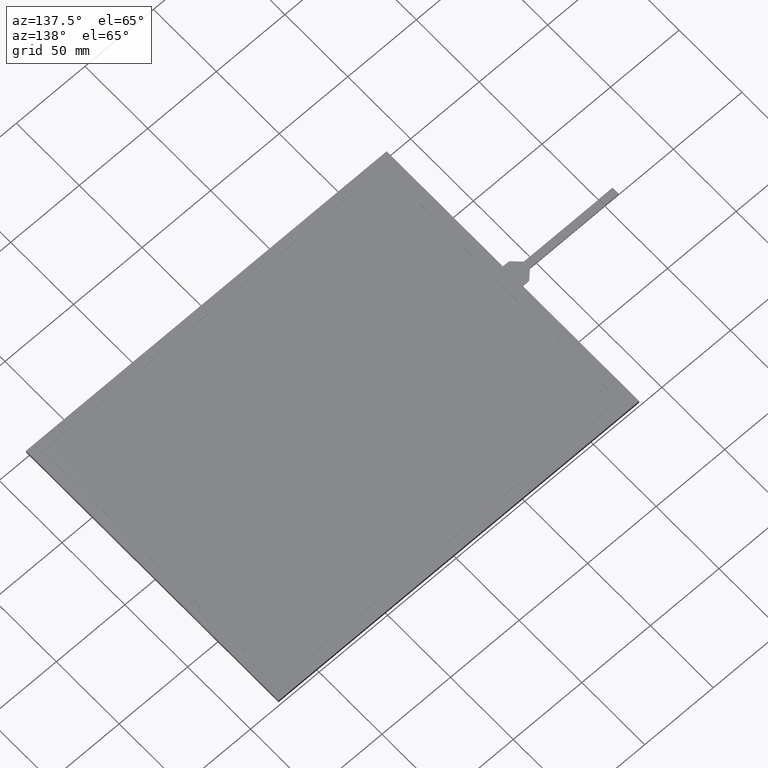
[diagram: clean part render]
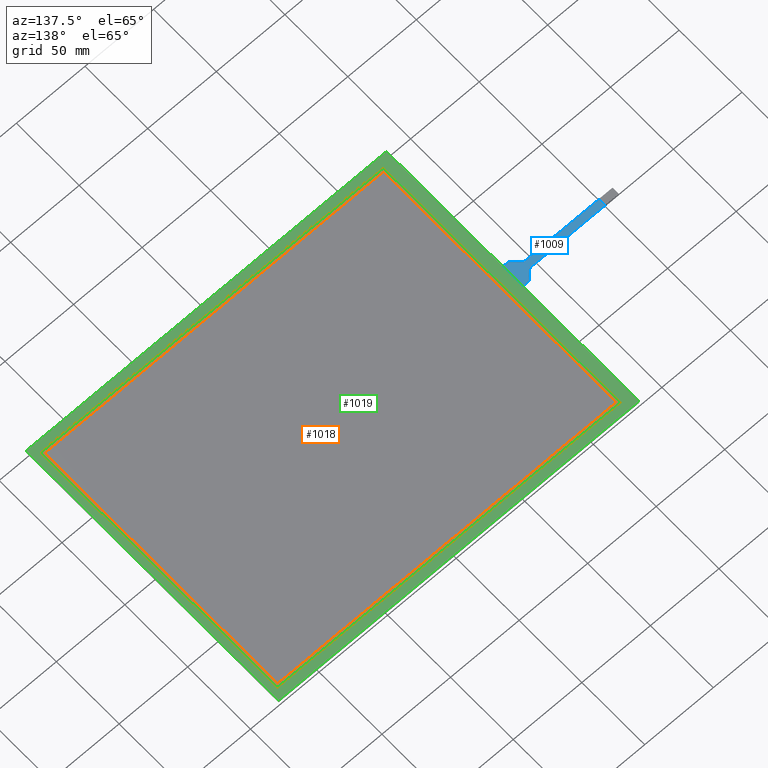
[diagram: same view with three faces highlighted in distinct colors, each labeled with its STEP entity id]
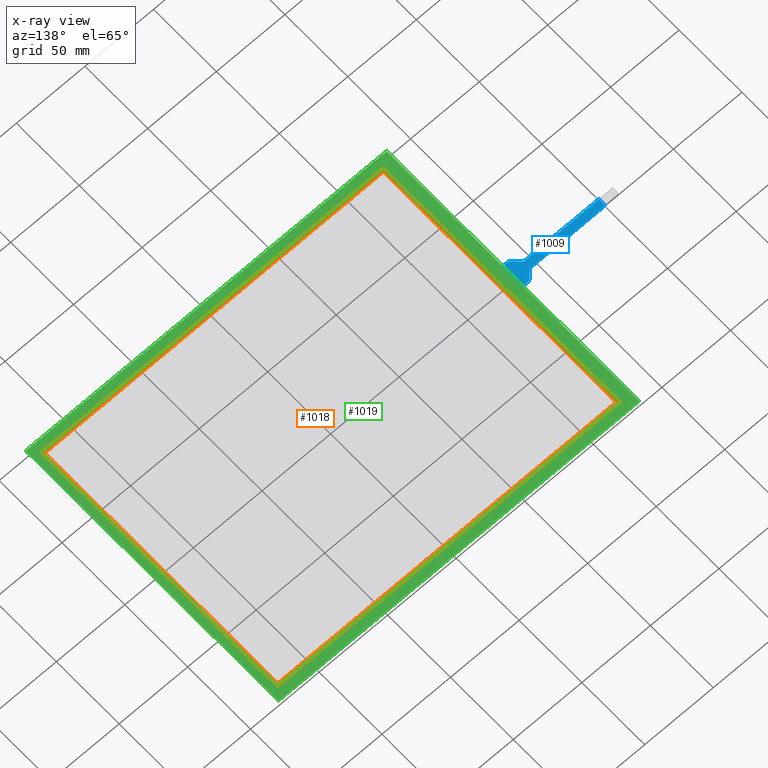
[diagram: x-ray of the same camera — body ghosted, the three highlighted faces saturated]
A machine part, auxiliary view with three faces highlighted in distinct colors.
The next image is the same camera in x-ray (body ghosted, the three faces saturated) — at least one of them is partly hidden behind the body in this view.
Their STEP definitions:

[orange] entity #1018 — the highlighted planar face has unit normal (0, 0, -1).
#46=FACE_BOUND('',#189,.T.);
#86=PLANE('',#1101);
#137=FACE_OUTER_BOUND('',#188,.T.);
#188=EDGE_LOOP('',(#925,#926,#927,#928));
#189=EDGE_LOOP('',(#929,#930,#931,#932));
#291=LINE('',#1576,#417);
#295=LINE('',#1583,#421);
#298=LINE('',#1589,#424);
#300=LINE('',#1592,#426);
#303=LINE('',#1600,#429);
#307=LINE('',#1607,#433);
#310=LINE('',#1613,#436);
#312=LINE('',#1616,#438);
#417=VECTOR('',#1299,10.);
#421=VECTOR('',#1305,10.);
#424=VECTOR('',#1310,10.);
#426=VECTOR('',#1314,10.);
#429=VECTOR('',#1319,10.);
#433=VECTOR('',#1325,10.);
#436=VECTOR('',#1330,10.);
#438=VECTOR('',#1334,10.);
#533=VERTEX_POINT('',#1573);
#534=VERTEX_POINT('',#1575);
#536=VERTEX_POINT('',#1581);
#538=VERTEX_POINT('',#1587);
#541=VERTEX_POINT('',#1597);
#542=VERTEX_POINT('',#1599);
#544=VERTEX_POINT('',#1605);
#546=VERTEX_POINT('',#1611);
#659=EDGE_CURVE('',#533,#534,#291,.T.);
#663=EDGE_CURVE('',#536,#533,#295,.T.);
#666=EDGE_CURVE('',#538,#536,#298,.T.);
#668=EDGE_CURVE('',#534,#538,#300,.T.);
#671=EDGE_CURVE('',#541,#542,#303,.T.);
#675=EDGE_CURVE('',#544,#541,#307,.T.);
#678=EDGE_CURVE('',#546,#544,#310,.T.);
#680=EDGE_CURVE('',#542,#546,#312,.T.);
#925=ORIENTED_EDGE('',*,*,#680,.F.);
#926=ORIENTED_EDGE('',*,*,#671,.F.);
#927=ORIENTED_EDGE('',*,*,#675,.F.);
#928=ORIENTED_EDGE('',*,*,#678,.F.);
#929=ORIENTED_EDGE('',*,*,#668,.F.);
#930=ORIENTED_EDGE('',*,*,#659,.F.);
#931=ORIENTED_EDGE('',*,*,#663,.F.);
#932=ORIENTED_EDGE('',*,*,#666,.F.);
#1018=ADVANCED_FACE('',(#137,#46),#86,.F.);
#1101=AXIS2_PLACEMENT_3D('',#1617,#1335,#1336);
#1299=DIRECTION('',(1.,0.,0.));
#1305=DIRECTION('',(0.,-1.,0.));
#1310=DIRECTION('',(-1.,0.,0.));
#1314=DIRECTION('',(0.,1.,0.));
#1319=DIRECTION('',(-9.42364371034615E-17,1.,0.));
#1325=DIRECTION('',(-1.,-1.4210854715202E-16,0.));
#1330=DIRECTION('',(1.88472874206923E-16,-1.,0.));
#1334=DIRECTION('',(1.,0.,0.));
#1335=DIRECTION('center_axis',(0.,0.,-1.));
#1336=DIRECTION('ref_axis',(-1.,0.,0.));
#1573=CARTESIAN_POINT('',(-123.5,-92.75,-0.1));
#1575=CARTESIAN_POINT('',(123.5,-92.75,-0.1));
#1576=CARTESIAN_POINT('',(123.5,-92.75,-0.1));
#1581=CARTESIAN_POINT('',(-123.5,92.75,-0.1));
#1583=CARTESIAN_POINT('',(-123.5,-92.75,-0.1));
#1587=CARTESIAN_POINT('',(123.5,92.75,-0.1));
#1589=CARTESIAN_POINT('',(-123.5,92.75,-0.1));
#1592=CARTESIAN_POINT('',(123.5,92.75,-0.1));
#1597=CARTESIAN_POINT('',(-125.,-94.25,-0.1));
#1599=CARTESIAN_POINT('',(-125.,94.25,-0.1));
#1600=CARTESIAN_POINT('',(-125.,94.25,-0.1));
#1605=CARTESIAN_POINT('',(125.,-94.25,-0.1));
#1607=CARTESIAN_POINT('',(-125.,-94.25,-0.1));
#1611=CARTESIAN_POINT('',(125.,94.25,-0.1));
#1613=CARTESIAN_POINT('',(125.,-94.25,-0.1));
#1616=CARTESIAN_POINT('',(125.,94.25,-0.1));
#1617=CARTESIAN_POINT('Origin',(0.,1.77635683940025E-14,-0.1));

[blue] entity #1009 — the highlighted planar face has unit normal (0, 0, 1).
#77=PLANE('',#1092);
#128=FACE_OUTER_BOUND('',#179,.T.);
#179=EDGE_LOOP('',(#881,#882,#883,#884,#885,#886,#887,#888,#889,#890,#891,
#892));
#203=LINE('',#1378,#329);
#214=LINE('',#1408,#340);
#218=LINE('',#1421,#344);
#283=LINE('',#1558,#409);
#284=LINE('',#1560,#410);
#285=LINE('',#1563,#411);
#287=LINE('',#1566,#413);
#288=LINE('',#1568,#414);
#329=VECTOR('',#1123,10.);
#340=VECTOR('',#1148,10.);
#344=VECTOR('',#1162,10.);
#409=VECTOR('',#1281,10.);
#410=VECTOR('',#1284,10.);
#411=VECTOR('',#1287,10.);
#413=VECTOR('',#1291,10.);
#414=VECTOR('',#1294,10.);
#452=CIRCLE('',#1048,2.);
#456=CIRCLE('',#1055,2.);
#457=CIRCLE('',#1058,1.);
#458=CIRCLE('',#1060,1.);
#465=VERTEX_POINT('',#1368);
#466=VERTEX_POINT('',#1370);
#468=VERTEX_POINT('',#1376);
#478=VERTEX_POINT('',#1400);
#479=VERTEX_POINT('',#1402);
#480=VERTEX_POINT('',#1406);
#481=VERTEX_POINT('',#1410);
#482=VERTEX_POINT('',#1414);
#483=VERTEX_POINT('',#1415);
#484=VERTEX_POINT('',#1420);
#529=VERTEX_POINT('',#1556);
#530=VERTEX_POINT('',#1562);
#557=EDGE_CURVE('',#465,#466,#452,.T.);
#561=EDGE_CURVE('',#465,#468,#203,.T.);
#573=EDGE_CURVE('',#478,#479,#456,.T.);
#576=EDGE_CURVE('',#478,#480,#214,.T.);
#577=EDGE_CURVE('',#481,#468,#457,.T.);
#579=EDGE_CURVE('',#482,#483,#458,.T.);
#582=EDGE_CURVE('',#484,#483,#218,.T.);
#651=EDGE_CURVE('',#481,#529,#283,.T.);
#652=EDGE_CURVE('',#529,#484,#284,.T.);
#653=EDGE_CURVE('',#530,#466,#285,.T.);
#655=EDGE_CURVE('',#482,#479,#287,.T.);
#656=EDGE_CURVE('',#530,#480,#288,.T.);
#881=ORIENTED_EDGE('',*,*,#557,.F.);
#882=ORIENTED_EDGE('',*,*,#561,.T.);
#883=ORIENTED_EDGE('',*,*,#577,.F.);
#884=ORIENTED_EDGE('',*,*,#651,.T.);
#885=ORIENTED_EDGE('',*,*,#652,.T.);
#886=ORIENTED_EDGE('',*,*,#582,.T.);
#887=ORIENTED_EDGE('',*,*,#579,.F.);
#888=ORIENTED_EDGE('',*,*,#655,.T.);
#889=ORIENTED_EDGE('',*,*,#573,.F.);
#890=ORIENTED_EDGE('',*,*,#576,.T.);
#891=ORIENTED_EDGE('',*,*,#656,.F.);
#892=ORIENTED_EDGE('',*,*,#653,.T.);
#1009=ADVANCED_FACE('',(#128),#77,.T.);
#1048=AXIS2_PLACEMENT_3D('',#1371,#1116,#1117);
#1055=AXIS2_PLACEMENT_3D('',#1403,#1142,#1143);
#1058=AXIS2_PLACEMENT_3D('',#1411,#1151,#1152);
#1060=AXIS2_PLACEMENT_3D('',#1416,#1156,#1157);
#1092=AXIS2_PLACEMENT_3D('',#1567,#1292,#1293);
#1116=DIRECTION('center_axis',(0.,0.,-1.));
#1117=DIRECTION('ref_axis',(-0.379345698749704,0.925255013950262,0.));
#1123=DIRECTION('',(-0.712193681680198,-0.701983019577257,0.));
#1142=DIRECTION('center_axis',(0.,0.,-1.));
#1143=DIRECTION('ref_axis',(-0.379345698749704,-0.925255013950262,0.));
#1148=DIRECTION('',(1.,-3.88699527221061E-15,0.));
#1151=DIRECTION('center_axis',(0.,0.,1.));
#1152=DIRECTION('ref_axis',(0.379345698749695,-0.925255013950265,0.));
#1156=DIRECTION('center_axis',(0.,0.,1.));
#1157=DIRECTION('ref_axis',(0.379345698749695,0.925255013950266,0.));
#1162=DIRECTION('',(1.,2.73917785566731E-16,0.));
#1281=DIRECTION('',(-1.,2.73917785566731E-16,0.));
#1284=DIRECTION('',(0.,-1.,0.));
#1287=DIRECTION('',(-1.,0.,0.));
#1291=DIRECTION('',(0.712193681680198,-0.701983019577258,0.));
#1292=DIRECTION('center_axis',(0.,0.,1.));
#1293=DIRECTION('ref_axis',(1.,0.,0.));
#1294=DIRECTION('',(1.76751924318433E-16,-1.,0.));
#1368=CARTESIAN_POINT('',(-138.153985184082,7.42438736336037,-0.2));
#1370=CARTESIAN_POINT('',(-136.750019144927,7.99999999999996,-0.2));
#1371=CARTESIAN_POINT('Origin',(-136.750019144927,5.99999999999997,-0.2));
#1376=CARTESIAN_POINT('',(-142.858007407959,2.78780631831975,-0.2));
#1378=CARTESIAN_POINT('',(-137.57,7.99999999999996,-0.2));
#1400=CARTESIAN_POINT('',(-136.750019144927,-8.00000000000002,-0.2));
#1402=CARTESIAN_POINT('',(-138.153985184082,-7.42438736336042,-0.2));
#1403=CARTESIAN_POINT('Origin',(-136.750019144927,-6.00000000000002,-0.2));
#1406=CARTESIAN_POINT('',(-133.,-8.00000000000004,-0.2));
#1408=CARTESIAN_POINT('',(-137.57,-8.00000000000002,-0.2));
#1410=CARTESIAN_POINT('',(-143.559990427536,2.49999999999996,-0.2));
#1411=CARTESIAN_POINT('Origin',(-143.559990427536,3.49999999999996,-0.2));
#1414=CARTESIAN_POINT('',(-142.858007407959,-2.7878063183198,-0.2));
#1415=CARTESIAN_POINT('',(-143.559990427536,-2.50000000000001,-0.2));
#1416=CARTESIAN_POINT('Origin',(-143.559990427536,-3.50000000000001,-0.2));
#1420=CARTESIAN_POINT('',(-198.,-2.50000000000003,-0.2));
#1421=CARTESIAN_POINT('',(-208.,-2.50000000000003,-0.2));
#1556=CARTESIAN_POINT('',(-198.,2.49999999999995,-0.2));
#1558=CARTESIAN_POINT('',(-143.15,2.49999999999996,-0.2));
#1560=CARTESIAN_POINT('',(-198.,-1.25000000000003,-0.2));
#1562=CARTESIAN_POINT('',(-133.,7.99999999999996,-0.2));
#1563=CARTESIAN_POINT('',(-133.,7.99999999999996,-0.2));
#1566=CARTESIAN_POINT('',(-143.15,-2.50000000000001,-0.2));
#1567=CARTESIAN_POINT('Origin',(-170.5,-3.5527136788005E-14,-0.2));
#1568=CARTESIAN_POINT('',(-133.,-50.25,-0.2));

[green] entity #1019 — the highlighted planar face has unit normal (0, 0, 1).
#47=FACE_BOUND('',#191,.T.);
#87=PLANE('',#1102);
#138=FACE_OUTER_BOUND('',#190,.T.);
#190=EDGE_LOOP('',(#933,#934,#935,#936));
#191=EDGE_LOOP('',(#937,#938,#939,#940));
#301=LINE('',#1596,#427);
#305=LINE('',#1604,#431);
#308=LINE('',#1610,#434);
#311=LINE('',#1615,#437);
#313=LINE('',#1621,#439);
#314=LINE('',#1623,#440);
#315=LINE('',#1625,#441);
#316=LINE('',#1626,#442);
#427=VECTOR('',#1317,10.);
#431=VECTOR('',#1323,10.);
#434=VECTOR('',#1328,10.);
#437=VECTOR('',#1333,10.);
#439=VECTOR('',#1339,10.);
#440=VECTOR('',#1340,10.);
#441=VECTOR('',#1341,10.);
#442=VECTOR('',#1342,10.);
#539=VERTEX_POINT('',#1594);
#540=VERTEX_POINT('',#1595);
#543=VERTEX_POINT('',#1603);
#545=VERTEX_POINT('',#1609);
#547=VERTEX_POINT('',#1619);
#548=VERTEX_POINT('',#1620);
#549=VERTEX_POINT('',#1622);
#550=VERTEX_POINT('',#1624);
#669=EDGE_CURVE('',#539,#540,#301,.T.);
#673=EDGE_CURVE('',#543,#539,#305,.T.);
#676=EDGE_CURVE('',#545,#543,#308,.T.);
#679=EDGE_CURVE('',#540,#545,#311,.T.);
#681=EDGE_CURVE('',#547,#548,#313,.T.);
#682=EDGE_CURVE('',#548,#549,#314,.T.);
#683=EDGE_CURVE('',#549,#550,#315,.T.);
#684=EDGE_CURVE('',#550,#547,#316,.T.);
#933=ORIENTED_EDGE('',*,*,#681,.T.);
#934=ORIENTED_EDGE('',*,*,#682,.T.);
#935=ORIENTED_EDGE('',*,*,#683,.T.);
#936=ORIENTED_EDGE('',*,*,#684,.T.);
#937=ORIENTED_EDGE('',*,*,#669,.T.);
#938=ORIENTED_EDGE('',*,*,#679,.T.);
#939=ORIENTED_EDGE('',*,*,#676,.T.);
#940=ORIENTED_EDGE('',*,*,#673,.T.);
#1019=ADVANCED_FACE('',(#138,#47),#87,.T.);
#1102=AXIS2_PLACEMENT_3D('',#1618,#1337,#1338);
#1317=DIRECTION('',(-9.42364371034615E-17,1.,0.));
#1323=DIRECTION('',(-1.,-1.4210854715202E-16,0.));
#1328=DIRECTION('',(1.88472874206923E-16,-1.,0.));
#1333=DIRECTION('',(1.,0.,0.));
#1337=DIRECTION('center_axis',(0.,0.,1.));
#1338=DIRECTION('ref_axis',(1.,0.,0.));
#1339=DIRECTION('',(-1.,0.,0.));
#1340=DIRECTION('',(1.76751924318433E-16,-1.,0.));
#1341=DIRECTION('',(1.,6.75420851482985E-17,0.));
#1342=DIRECTION('',(0.,1.,0.));
#1594=CARTESIAN_POINT('',(-125.,-94.25,0.));
#1595=CARTESIAN_POINT('',(-125.,94.25,0.));
#1596=CARTESIAN_POINT('',(-125.,-47.125,0.));
#1603=CARTESIAN_POINT('',(125.,-94.25,0.));
#1604=CARTESIAN_POINT('',(61.75,-94.25,0.));
#1609=CARTESIAN_POINT('',(125.,94.25,0.));
#1610=CARTESIAN_POINT('',(125.,47.125,0.));
#1615=CARTESIAN_POINT('',(-63.25,94.25,0.));
#1618=CARTESIAN_POINT('Origin',(-1.50000000000002,8.88178419700125E-15,
0.));
#1619=CARTESIAN_POINT('',(130.,100.5,0.));
#1620=CARTESIAN_POINT('',(-133.,100.5,0.));
#1621=CARTESIAN_POINT('',(130.,100.5,0.));
#1622=CARTESIAN_POINT('',(-133.,-100.5,0.));
#1623=CARTESIAN_POINT('',(-133.,100.5,0.));
#1624=CARTESIAN_POINT('',(130.,-100.5,0.));
#1625=CARTESIAN_POINT('',(-133.,-100.5,0.));
#1626=CARTESIAN_POINT('',(130.,-100.5,0.));